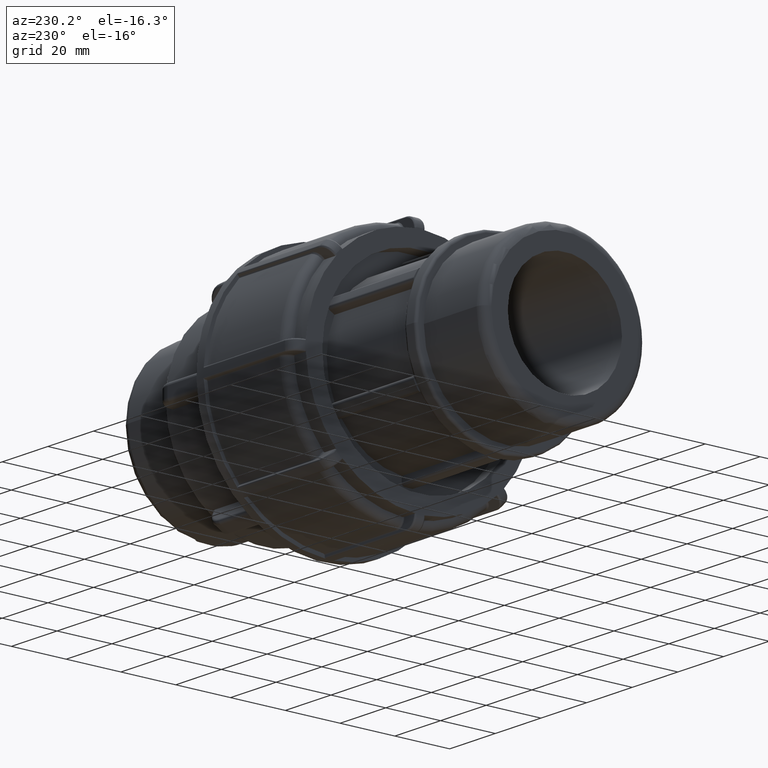
[diagram: clean part render]
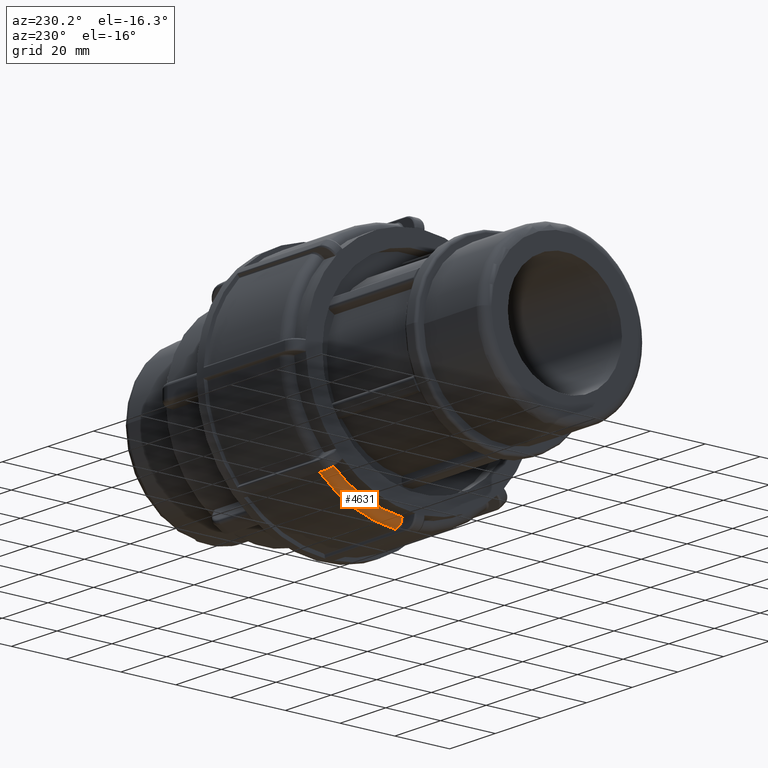
[diagram: same view with one face highlighted and labeled with its STEP entity id]
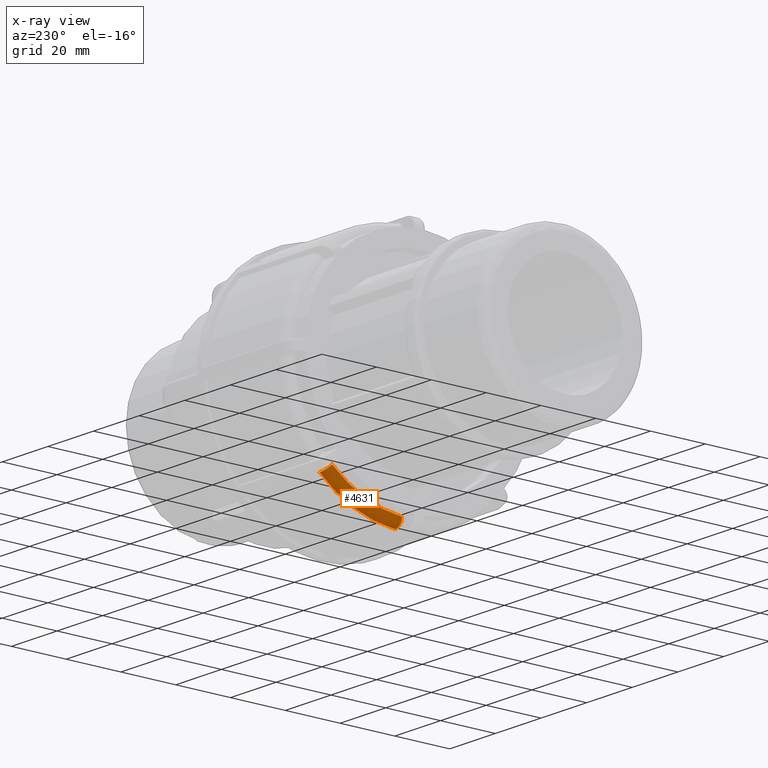
[diagram: x-ray of the same camera — body ghosted, the highlighted face saturated]
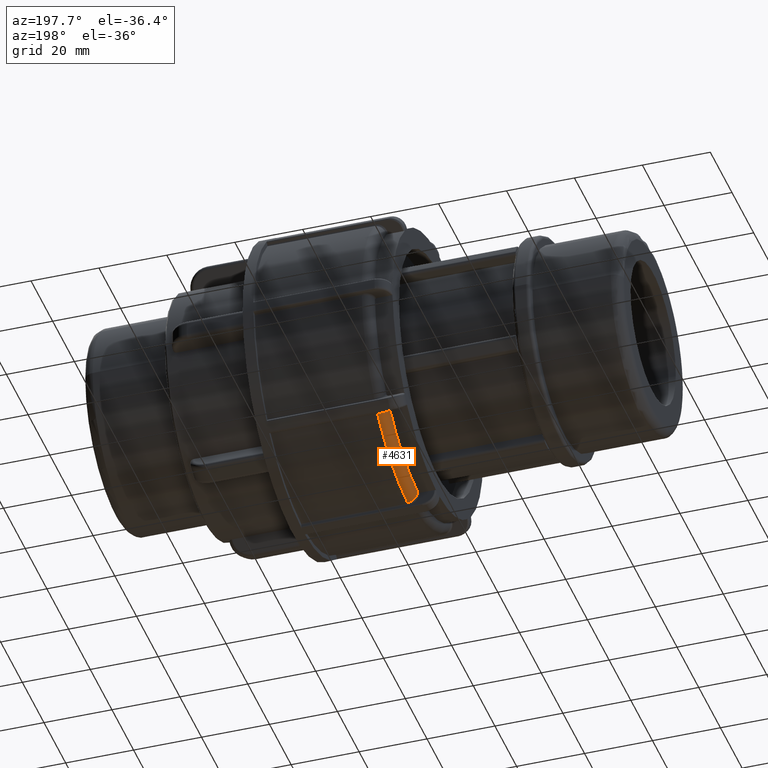
[diagram: same view with one face highlighted and labeled with its STEP entity id]
A machine part, auxiliary view. The second image highlights one B-rep face of the part: STEP entity #4631.
The next image is the same camera in x-ray: the body ghosted, the highlighted face saturated — about 0% of this face is hidden behind the body in this view.
A second angle (auxiliary view) of the same face is appended — the face is thin or edge-on in the first view.
In plain terms, the highlighted toroidal blend (fillet) surface has major radius 41.6878 mm and minor (blend) radius 2.9807 mm.
Its self-contained STEP definition (entity closure, byte-faithful):
#178=TOROIDAL_SURFACE('',#5154,41.6878,2.9807);
#444=FACE_OUTER_BOUND('',#727,.T.);
#727=EDGE_LOOP('',(#4214,#4215,#4216,#4217));
#767=B_SPLINE_CURVE_WITH_KNOTS('',3,(#7322,#7323,#7324,#7325,#7326),
 .UNSPECIFIED.,.F.,.F.,(4,1,4),(-0.536046685375973,-0.229734293732559,5.61539915993818E-16),
 .UNSPECIFIED.);
#782=B_SPLINE_CURVE_WITH_KNOTS('',3,(#7657,#7658,#7659,#7660,#7661),
 .UNSPECIFIED.,.F.,.F.,(4,1,4),(-0.536046685376013,-0.229734293732577,-2.89218009084271E-30),
 .UNSPECIFIED.);
#1590=CIRCLE('',#4890,41.7298);
#1724=CIRCLE('',#5147,44.6685);
#1927=VERTEX_POINT('',#7297);
#1929=VERTEX_POINT('',#7320);
#1961=VERTEX_POINT('',#7612);
#1962=VERTEX_POINT('',#7640);
#2447=EDGE_CURVE('',#1929,#1927,#767,.T.);
#2504=EDGE_CURVE('',#1962,#1961,#782,.T.);
#2505=EDGE_CURVE('',#1962,#1927,#1590,.T.);
#2853=EDGE_CURVE('',#1929,#1961,#1724,.T.);
#4214=ORIENTED_EDGE('',*,*,#2447,.F.);
#4215=ORIENTED_EDGE('',*,*,#2853,.T.);
#4216=ORIENTED_EDGE('',*,*,#2504,.F.);
#4217=ORIENTED_EDGE('',*,*,#2505,.T.);
#4631=ADVANCED_FACE('',(#444),#178,.T.);
#4890=AXIS2_PLACEMENT_3D('',#7663,#5820,#5821);
#5147=AXIS2_PLACEMENT_3D('',#9442,#6473,#6474);
#5154=AXIS2_PLACEMENT_3D('',#9449,#6487,#6488);
#5820=DIRECTION('center_axis',(1.,0.,0.));
#5821=DIRECTION('ref_axis',(0.,0.,-1.));
#6473=DIRECTION('center_axis',(-1.,0.,0.));
#6474=DIRECTION('ref_axis',(0.,1.,-1.83720076010973E-16));
#6487=DIRECTION('center_axis',(1.,0.,0.));
#6488=DIRECTION('ref_axis',(0.,1.,-1.83720076010973E-16));
#7297=CARTESIAN_POINT('',(-89.9,27.8346273503509,-31.090347831877));
#7320=CARTESIAN_POINT('',(-86.9195959183359,29.9327628126583,-33.1557627366819));
#7322=CARTESIAN_POINT('Ctrl Pts',(-86.9195959183359,29.9327628126583,-33.1557627366819));
#7323=CARTESIAN_POINT('Ctrl Pts',(-87.8040018869626,29.9327628126583,-33.1557627366819));
#7324=CARTESIAN_POINT('Ctrl Pts',(-89.3346733685706,29.4076347209325,-32.6380362523035));
#7325=CARTESIAN_POINT('Ctrl Pts',(-89.890667839714,28.3078147212477,-31.5555623201182));
#7326=CARTESIAN_POINT('Ctrl Pts',(-89.9,27.8346273503509,-31.090347831877));
#7612=CARTESIAN_POINT('',(-86.9195959183359,2.27900510204081,-44.6103242309992));
#7640=CARTESIAN_POINT('',(-89.9,2.30214203013501,-41.6662495326023));
#7657=CARTESIAN_POINT('Ctrl Pts',(-89.9,2.30214203013502,-41.6662495326023));
#7658=CARTESIAN_POINT('Ctrl Pts',(-89.8875571196187,2.29462512427979,-42.5509832900351));
#7659=CARTESIAN_POINT('Ctrl Pts',(-89.1324920484265,2.28281526775138,-44.0729534507543));
#7660=CARTESIAN_POINT('Ctrl Pts',(-87.582900394806,2.27900510204081,-44.6103242309992));
#7661=CARTESIAN_POINT('Ctrl Pts',(-86.9195959183359,2.27900510204081,-44.6103242309992));
#7663=CARTESIAN_POINT('Origin',(-89.9,0.,0.));
#9442=CARTESIAN_POINT('Origin',(-86.9195959183359,0.,0.));
#9449=CARTESIAN_POINT('Origin',(-86.9195959183359,0.,0.));